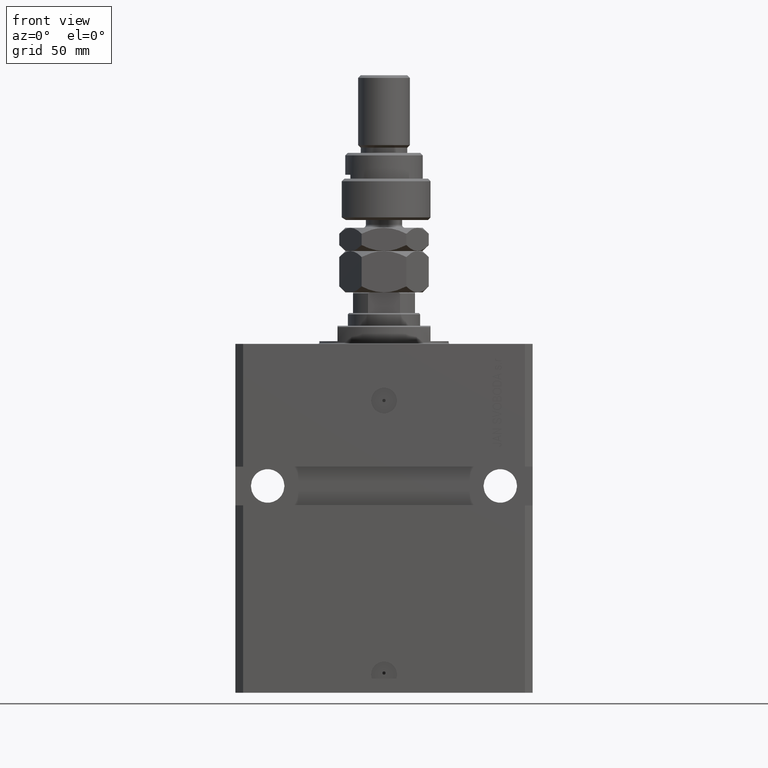
[diagram: clean part render]
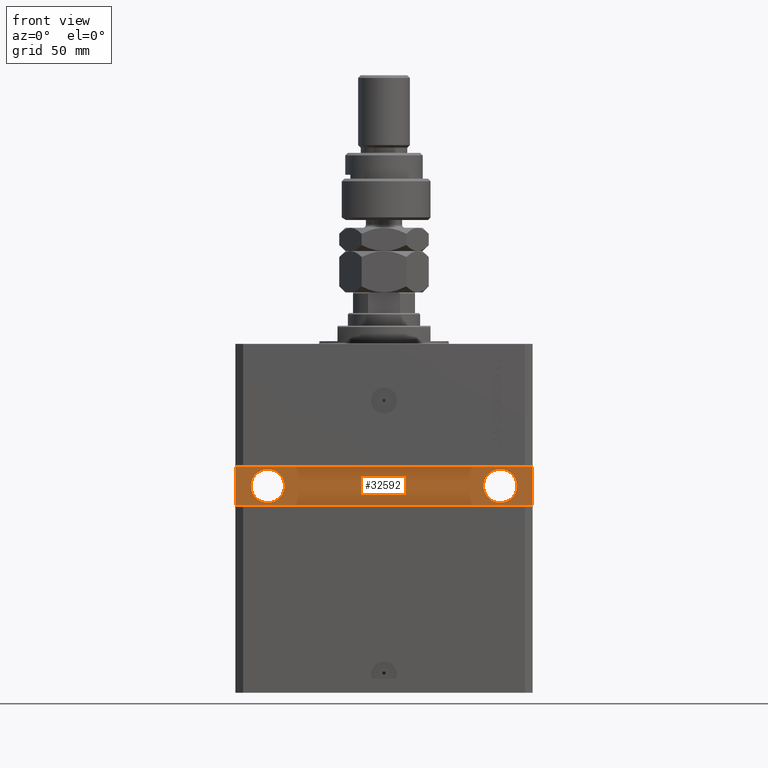
[diagram: same view with one face highlighted and labeled with its STEP entity id]
A machine part, front view. The second image highlights one B-rep face of the part: STEP entity #32592.
In plain terms, the highlighted planar face has unit normal (0, -1, 0).
Its self-contained STEP definition (entity closure, byte-faithful):
#176 = CARTESIAN_POINT ( 'NONE',  ( 45.00000000000001421, -39.99999999999999289, -55.00000000000000000 ) ) ;
#661 = LINE ( 'NONE', #32444, #2995 ) ;
#1163 = ORIENTED_EDGE ( 'NONE', *, *, #9394, .F. ) ;
#1917 = AXIS2_PLACEMENT_3D ( 'NONE', #11657, #15039, #27011 ) ;
#2841 = CARTESIAN_POINT ( 'NONE',  ( 57.50000000000000711, -39.99999999999998579, -62.49999999999999289 ) ) ;
#2995 = VECTOR ( 'NONE', #44393, 1000.000000000000000 ) ;
#3565 = AXIS2_PLACEMENT_3D ( 'NONE', #5527, #26620, #49769 ) ;
#5527 = CARTESIAN_POINT ( 'NONE',  ( 4.842396851142260860E-15, -39.99999999999999289, 0.000000000000000000 ) ) ;
#5710 = VERTEX_POINT ( 'NONE', #51005 ) ;
#8113 = CIRCLE ( 'NONE', #42153, 6.499999999999999112 ) ;
#9394 = EDGE_CURVE ( 'NONE', #47902, #32110, #24584, .T. ) ;
#9518 = CIRCLE ( 'NONE', #34466, 6.499999999999999112 ) ;
#10383 = EDGE_CURVE ( 'NONE', #21823, #51377, #661, .T. ) ;
#11384 = DIRECTION ( 'NONE',  ( 1.101411730780568590E-16, -1.000000000000000000, 0.000000000000000000 ) ) ;
#11657 = CARTESIAN_POINT ( 'NONE',  ( 45.00000000000001421, -39.99999999999999289, -55.00000000000000000 ) ) ;
#12763 = EDGE_LOOP ( 'NONE', ( #28508, #1163 ) ) ;
#13238 = EDGE_LOOP ( 'NONE', ( #15675, #26729 ) ) ;
#13870 = FACE_OUTER_BOUND ( 'NONE', #15122, .T. ) ;
#14516 = DIRECTION ( 'NONE',  ( -1.000000000000000000, -1.206764157201257045E-16, -1.810146235801885814E-16 ) ) ;
#14840 = CARTESIAN_POINT ( 'NONE',  ( -38.49999999999998579, -40.00000000000000000, -55.00000000000001421 ) ) ;
#15039 = DIRECTION ( 'NONE',  ( 7.680174481697266334E-17, -1.000000000000000000, 1.232595164407830946E-32 ) ) ;
#15122 = EDGE_LOOP ( 'NONE', ( #41051, #46942, #17135, #19085 ) ) ;
#15675 = ORIENTED_EDGE ( 'NONE', *, *, #16452, .F. ) ;
#16031 = CARTESIAN_POINT ( 'NONE',  ( 57.50000000000000711, -39.99999999999998579, -47.49999999999998579 ) ) ;
#16240 = CARTESIAN_POINT ( 'NONE',  ( 38.50000000000001421, -39.99999999999999289, -55.00000000000000000 ) ) ;
#16452 = EDGE_CURVE ( 'NONE', #25053, #17056, #8113, .T. ) ;
#17056 = VERTEX_POINT ( 'NONE', #16240 ) ;
#17135 = ORIENTED_EDGE ( 'NONE', *, *, #49421, .T. ) ;
#17764 = CIRCLE ( 'NONE', #1917, 6.499999999999999112 ) ;
#18544 = FACE_BOUND ( 'NONE', #12763, .T. ) ;
#19073 = EDGE_CURVE ( 'NONE', #5710, #24332, #51185, .T. ) ;
#19085 = ORIENTED_EDGE ( 'NONE', *, *, #19073, .T. ) ;
#21823 = VERTEX_POINT ( 'NONE', #2841 ) ;
#22959 = AXIS2_PLACEMENT_3D ( 'NONE', #33780, #11384, #42847 ) ;
#23926 = DIRECTION ( 'NONE',  ( 1.000000000000000000, 0.000000000000000000, 0.000000000000000000 ) ) ;
#24332 = VERTEX_POINT ( 'NONE', #38458 ) ;
#24584 = CIRCLE ( 'NONE', #22959, 6.499999999999999112 ) ;
#25053 = VERTEX_POINT ( 'NONE', #37455 ) ;
#26238 = LINE ( 'NONE', #50149, #42182 ) ;
#26620 = DIRECTION ( 'NONE',  ( 1.206764157201257045E-16, -1.000000000000000000, 0.000000000000000000 ) ) ;
#26729 = ORIENTED_EDGE ( 'NONE', *, *, #34113, .F. ) ;
#27011 = DIRECTION ( 'NONE',  ( 1.000000000000000000, 0.000000000000000000, 0.000000000000000000 ) ) ;
#27016 = CARTESIAN_POINT ( 'NONE',  ( -57.50000000000000711, -40.00000000000000000, -62.50000000000000000 ) ) ;
#28508 = ORIENTED_EDGE ( 'NONE', *, *, #39087, .F. ) ;
#28960 = VECTOR ( 'NONE', #35826, 1000.000000000000000 ) ;
#32110 = VERTEX_POINT ( 'NONE', #14840 ) ;
#32444 = CARTESIAN_POINT ( 'NONE',  ( 57.50000000000000711, -39.99999999999998579, -62.49999999999999289 ) ) ;
#32592 = ADVANCED_FACE ( 'NONE', ( #45349, #18544, #13870 ), #50019, .T. ) ;
#33780 = CARTESIAN_POINT ( 'NONE',  ( -44.99999999999998579, -40.00000000000000000, -55.00000000000001421 ) ) ;
#34062 = CARTESIAN_POINT ( 'NONE',  ( -44.99999999999998579, -40.00000000000000000, -55.00000000000001421 ) ) ;
#34113 = EDGE_CURVE ( 'NONE', #17056, #25053, #17764, .T. ) ;
#34466 = AXIS2_PLACEMENT_3D ( 'NONE', #34062, #37701, #49155 ) ;
#35826 = DIRECTION ( 'NONE',  ( 0.000000000000000000, 0.000000000000000000, -1.000000000000000000 ) ) ;
#37455 = CARTESIAN_POINT ( 'NONE',  ( 51.50000000000001421, -39.99999999999999289, -55.00000000000000000 ) ) ;
#37701 = DIRECTION ( 'NONE',  ( 1.101411730780568590E-16, -1.000000000000000000, 0.000000000000000000 ) ) ;
#37911 = CARTESIAN_POINT ( 'NONE',  ( -51.49999999999998579, -40.00000000000000000, -55.00000000000001421 ) ) ;
#38458 = CARTESIAN_POINT ( 'NONE',  ( -57.50000000000000711, -40.00000000000000000, -62.50000000000000000 ) ) ;
#38963 = DIRECTION ( 'NONE',  ( 1.000000000000000000, 1.206764157201257045E-16, 6.033820786006285224E-17 ) ) ;
#39087 = EDGE_CURVE ( 'NONE', #32110, #47902, #9518, .T. ) ;
#41051 = ORIENTED_EDGE ( 'NONE', *, *, #50255, .T. ) ;
#42153 = AXIS2_PLACEMENT_3D ( 'NONE', #176, #48324, #23926 ) ;
#42182 = VECTOR ( 'NONE', #14516, 1000.000000000000000 ) ;
#42847 = DIRECTION ( 'NONE',  ( 1.000000000000000000, 0.000000000000000000, 0.000000000000000000 ) ) ;
#44393 = DIRECTION ( 'NONE',  ( 0.000000000000000000, 0.000000000000000000, 1.000000000000000000 ) ) ;
#45349 = FACE_BOUND ( 'NONE', #13238, .T. ) ;
#46942 = ORIENTED_EDGE ( 'NONE', *, *, #10383, .T. ) ;
#47791 = CARTESIAN_POINT ( 'NONE',  ( -57.50000000000000711, -40.00000000000000000, -47.50000000000000711 ) ) ;
#47902 = VERTEX_POINT ( 'NONE', #37911 ) ;
#48324 = DIRECTION ( 'NONE',  ( 7.680174481697266334E-17, -1.000000000000000000, 1.232595164407830946E-32 ) ) ;
#49155 = DIRECTION ( 'NONE',  ( 1.000000000000000000, 0.000000000000000000, 0.000000000000000000 ) ) ;
#49421 = EDGE_CURVE ( 'NONE', #51377, #5710, #26238, .T. ) ;
#49769 = DIRECTION ( 'NONE',  ( 1.000000000000000000, 1.206764157201257045E-16, 0.000000000000000000 ) ) ;
#50019 = PLANE ( 'NONE',  #3565 ) ;
#50149 = CARTESIAN_POINT ( 'NONE',  ( 57.50000000000000711, -39.99999999999998579, -47.49999999999998579 ) ) ;
#50255 = EDGE_CURVE ( 'NONE', #24332, #21823, #50931, .T. ) ;
#50931 = LINE ( 'NONE', #27016, #51368 ) ;
#51005 = CARTESIAN_POINT ( 'NONE',  ( -57.50000000000000711, -40.00000000000000000, -47.50000000000000711 ) ) ;
#51185 = LINE ( 'NONE', #47791, #28960 ) ;
#51368 = VECTOR ( 'NONE', #38963, 1000.000000000000000 ) ;
#51377 = VERTEX_POINT ( 'NONE', #16031 ) ;